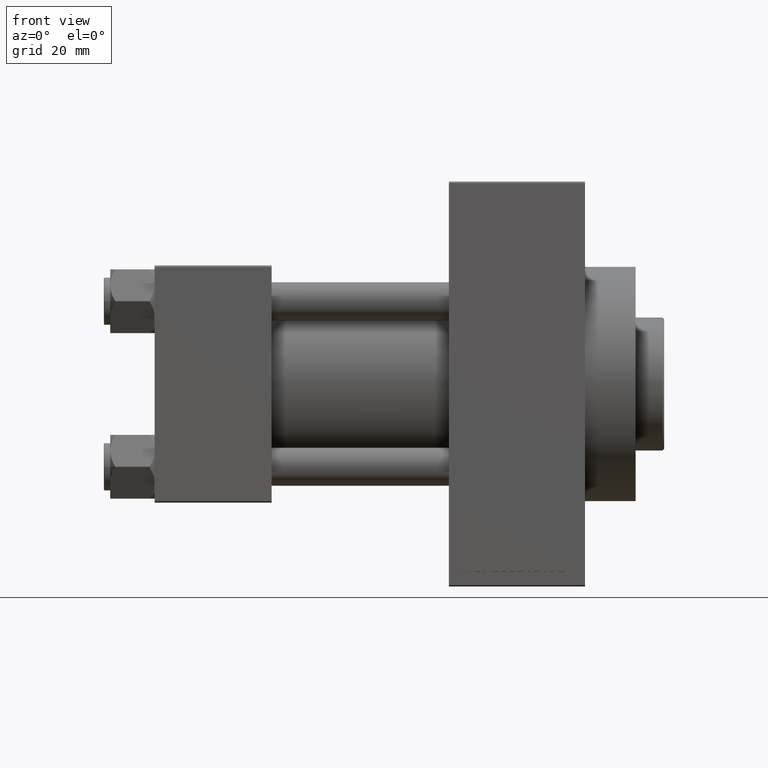
[diagram: clean part render]
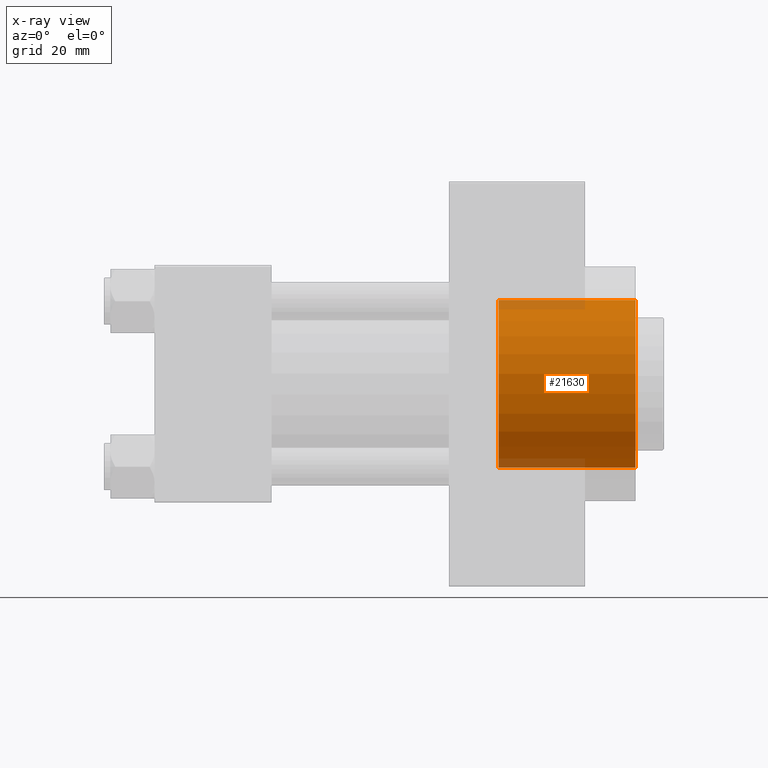
[diagram: x-ray — body ghosted, one internal face saturated and labeled with its STEP entity id]
A machine part, front view, then the same camera in x-ray: the body is ghosted and one INTERNAL B-rep face — a face not visible from any outside direction — is saturated and labeled: STEP entity #21630.
In plain terms, the highlighted cylindrical surface (partial cylindrical patch) has radius 26.5 mm, axis along (1, 0, 0).
Its self-contained STEP definition (entity closure, byte-faithful):
#2367 = LINE ( 'NONE', #6647, #40499 ) ;
#2723 = DIRECTION ( 'NONE',  ( 0.000000000000000000, 0.000000000000000000, -1.000000000000000000 ) ) ;
#2849 = EDGE_CURVE ( 'NONE', #31421, #31030, #23619, .T. ) ;
#3060 = DIRECTION ( 'NONE',  ( 1.000000000000000000, -0.000000000000000000, -0.000000000000000000 ) ) ;
#5486 = CARTESIAN_POINT ( 'NONE',  ( 108.7400000000000375, 3.245314017740486554E-15, 26.50000000000000355 ) ) ;
#5608 = CYLINDRICAL_SURFACE ( 'NONE', #26375, 26.50000000000000355 ) ;
#6647 = CARTESIAN_POINT ( 'NONE',  ( 108.7400000000000375, 3.245314017740486554E-15, 26.50000000000000355 ) ) ;
#7141 = EDGE_CURVE ( 'NONE', #31421, #29948, #2367, .T. ) ;
#7543 = ORIENTED_EDGE ( 'NONE', *, *, #44747, .T. ) ;
#10825 = CARTESIAN_POINT ( 'NONE',  ( 108.7400000000000375, 0.000000000000000000, 0.000000000000000000 ) ) ;
#11274 = CARTESIAN_POINT ( 'NONE',  ( 108.7400000000000375, 0.000000000000000000, -26.50000000000000355 ) ) ;
#13185 = DIRECTION ( 'NONE',  ( 1.000000000000000000, -0.000000000000000000, -0.000000000000000000 ) ) ;
#18002 = DIRECTION ( 'NONE',  ( 1.000000000000000000, 0.000000000000000000, 0.000000000000000000 ) ) ;
#18552 = ORIENTED_EDGE ( 'NONE', *, *, #39606, .F. ) ;
#20161 = DIRECTION ( 'NONE',  ( 1.000000000000000000, -0.000000000000000000, -0.000000000000000000 ) ) ;
#20390 = DIRECTION ( 'NONE',  ( 1.000000000000000000, 0.000000000000000000, 0.000000000000000000 ) ) ;
#20392 = FACE_OUTER_BOUND ( 'NONE', #29346, .T. ) ;
#20808 = LINE ( 'NONE', #21270, #30144 ) ;
#21270 = CARTESIAN_POINT ( 'NONE',  ( 108.7400000000000375, 0.000000000000000000, -26.50000000000000355 ) ) ;
#21630 = ADVANCED_FACE ( 'NONE', ( #20392 ), #5608, .F. ) ;
#21763 = AXIS2_PLACEMENT_3D ( 'NONE', #42368, #20390, #2723 ) ;
#22858 = ORIENTED_EDGE ( 'NONE', *, *, #7141, .T. ) ;
#23619 = CIRCLE ( 'NONE', #46486, 26.50000000000000355 ) ;
#26375 = AXIS2_PLACEMENT_3D ( 'NONE', #28026, #20161, #46187 ) ;
#28026 = CARTESIAN_POINT ( 'NONE',  ( 108.7400000000000375, 0.000000000000000000, 0.000000000000000000 ) ) ;
#29346 = EDGE_LOOP ( 'NONE', ( #31651, #22858, #7543, #18552 ) ) ;
#29857 = CARTESIAN_POINT ( 'NONE',  ( 152.0000000000000284, 3.245314017740486554E-15, 26.50000000000000355 ) ) ;
#29948 = VERTEX_POINT ( 'NONE', #29857 ) ;
#30144 = VECTOR ( 'NONE', #13185, 1000.000000000000000 ) ;
#31030 = VERTEX_POINT ( 'NONE', #11274 ) ;
#31421 = VERTEX_POINT ( 'NONE', #5486 ) ;
#31651 = ORIENTED_EDGE ( 'NONE', *, *, #2849, .F. ) ;
#39201 = CARTESIAN_POINT ( 'NONE',  ( 152.0000000000000284, 0.000000000000000000, -26.50000000000000355 ) ) ;
#39574 = VERTEX_POINT ( 'NONE', #39201 ) ;
#39606 = EDGE_CURVE ( 'NONE', #31030, #39574, #20808, .T. ) ;
#40499 = VECTOR ( 'NONE', #3060, 1000.000000000000000 ) ;
#42368 = CARTESIAN_POINT ( 'NONE',  ( 152.0000000000000284, 0.000000000000000000, 0.000000000000000000 ) ) ;
#44747 = EDGE_CURVE ( 'NONE', #29948, #39574, #46971, .T. ) ;
#46187 = DIRECTION ( 'NONE',  ( 0.000000000000000000, 0.000000000000000000, -1.000000000000000000 ) ) ;
#46486 = AXIS2_PLACEMENT_3D ( 'NONE', #10825, #18002, #47137 ) ;
#46971 = CIRCLE ( 'NONE', #21763, 26.50000000000000355 ) ;
#47137 = DIRECTION ( 'NONE',  ( 0.000000000000000000, 0.000000000000000000, -1.000000000000000000 ) ) ;